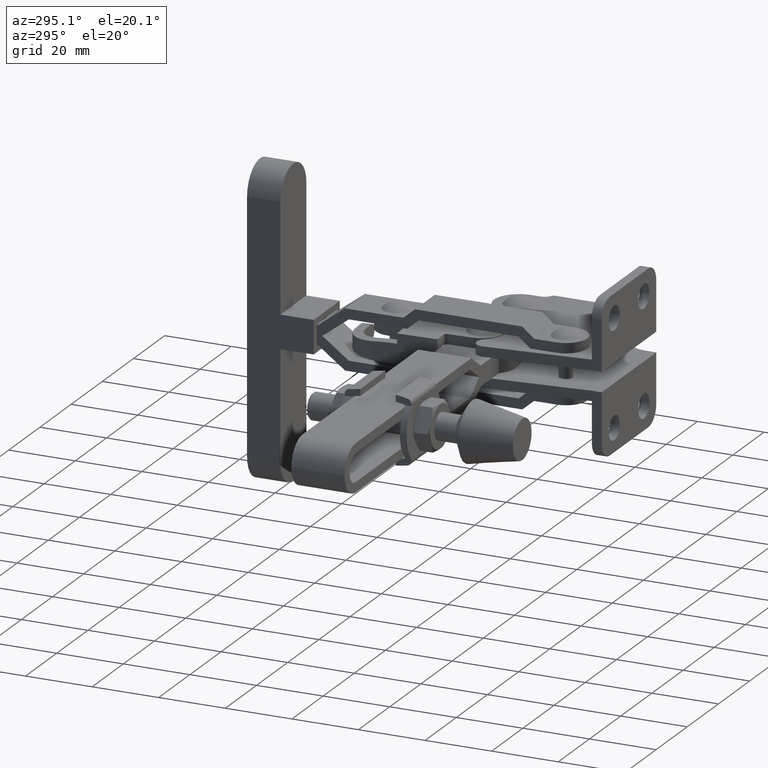
[diagram: clean part render]
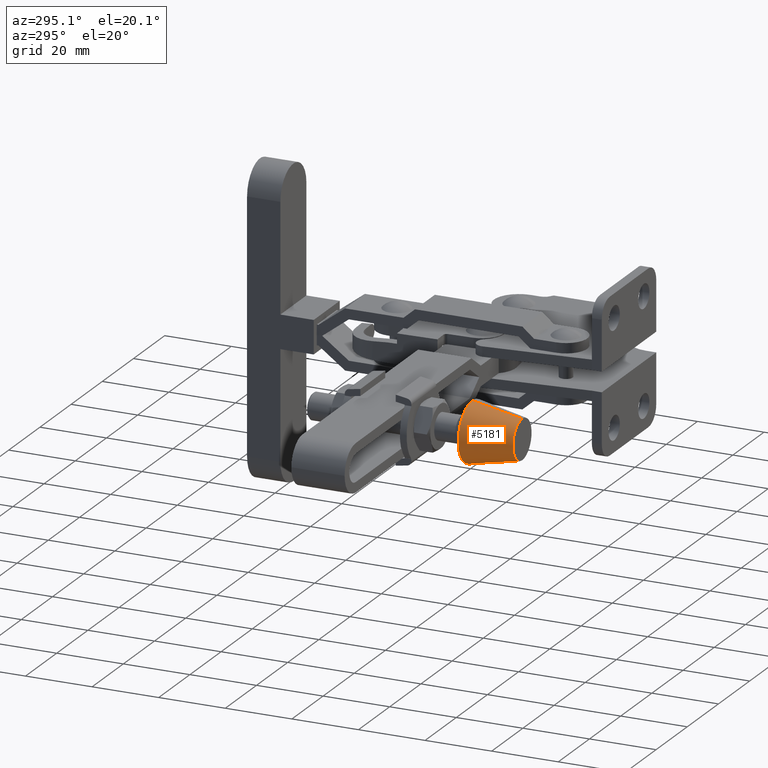
[diagram: same view with one face highlighted and labeled with its STEP entity id]
A machine part, auxiliary view. The second image highlights one B-rep face of the part: STEP entity #5181.
In plain terms, the highlighted conical surface has half-angle 11.31 deg.
Its self-contained STEP definition (entity closure, byte-faithful):
#578 = DIRECTION ( 'NONE',  ( 0.0000000000000000000, 0.0000000000000000000, 1.000000000000000000 ) ) ;
#628 = CARTESIAN_POINT ( 'NONE',  ( -94.37569315383768800, 0.2999999999995207600, -5.999999999999967100 ) ) ;
#700 = LINE ( 'NONE', #6957, #4979 ) ;
#846 = VECTOR ( 'NONE', #4433, 1000.000000000000000 ) ;
#1052 = ORIENTED_EDGE ( 'NONE', *, *, #2400, .F. ) ;
#1784 = DIRECTION ( 'NONE',  ( 0.0000000000000000000, 1.000000000000000000, 0.0000000000000000000 ) ) ;
#2168 = AXIS2_PLACEMENT_3D ( 'NONE', #10072, #4817, #9836 ) ;
#2388 = CARTESIAN_POINT ( 'NONE',  ( -94.37569315383768800, 15.29999999999952100, 9.000000000000032000 ) ) ;
#2400 = EDGE_CURVE ( 'NONE', #10718, #10616, #10049, .T. ) ;
#2422 = DIRECTION ( 'NONE',  ( -0.0000000000000000000, -1.000000000000000000, -0.0000000000000000000 ) ) ;
#2563 = EDGE_CURVE ( 'NONE', #5316, #3992, #700, .T. ) ;
#2602 = ORIENTED_EDGE ( 'NONE', *, *, #2563, .T. ) ;
#3874 = CARTESIAN_POINT ( 'NONE',  ( -94.37569315383768800, 15.29999999999952100, -8.999999999999966200 ) ) ;
#3992 = VERTEX_POINT ( 'NONE', #2388 ) ;
#4004 = AXIS2_PLACEMENT_3D ( 'NONE', #5588, #1784, #578 ) ;
#4361 = AXIS2_PLACEMENT_3D ( 'NONE', #7563, #2422, #8402 ) ;
#4433 = DIRECTION ( 'NONE',  ( 2.401729971581267900E-017, 0.9805806756909202200, -0.1961161351381839900 ) ) ;
#4817 = DIRECTION ( 'NONE',  ( -0.0000000000000000000, -1.000000000000000000, -0.0000000000000000000 ) ) ;
#4847 = EDGE_CURVE ( 'NONE', #5316, #10718, #8886, .T. ) ;
#4928 = EDGE_LOOP ( 'NONE', ( #1052, #8685, #2602, #6081 ) ) ;
#4979 = VECTOR ( 'NONE', #8654, 1000.000000000000000 ) ;
#5181 = ADVANCED_FACE ( 'NONE', ( #9279 ), #8175, .T. ) ;
#5316 = VERTEX_POINT ( 'NONE', #5939 ) ;
#5588 = CARTESIAN_POINT ( 'NONE',  ( -94.37569315383768800, 0.2999999999995207600, 3.295974604355933500E-014 ) ) ;
#5939 = CARTESIAN_POINT ( 'NONE',  ( -94.37569315383768800, 0.2999999999995207600, 6.000000000000032900 ) ) ;
#6081 = ORIENTED_EDGE ( 'NONE', *, *, #10724, .T. ) ;
#6957 = CARTESIAN_POINT ( 'NONE',  ( -94.37569315383768800, 0.2999999999995207600, 6.000000000000032900 ) ) ;
#7563 = CARTESIAN_POINT ( 'NONE',  ( -94.37569315383768800, 15.29999999999952100, 3.295974604355933500E-014 ) ) ;
#7935 = CARTESIAN_POINT ( 'NONE',  ( -94.37569315383768800, 0.2999999999995207600, -5.999999999999967100 ) ) ;
#8175 = CONICAL_SURFACE ( 'NONE', #4004, 6.000000000000000000, 0.1973955598498806600 ) ;
#8402 = DIRECTION ( 'NONE',  ( 0.0000000000000000000, 0.0000000000000000000, -1.000000000000000000 ) ) ;
#8613 = CIRCLE ( 'NONE', #4361, 9.000000000000000000 ) ;
#8654 = DIRECTION ( 'NONE',  ( 0.0000000000000000000, 0.9805806756909202200, 0.1961161351381839900 ) ) ;
#8685 = ORIENTED_EDGE ( 'NONE', *, *, #4847, .F. ) ;
#8886 = CIRCLE ( 'NONE', #2168, 6.000000000000000000 ) ;
#9279 = FACE_OUTER_BOUND ( 'NONE', #4928, .T. ) ;
#9836 = DIRECTION ( 'NONE',  ( 0.0000000000000000000, 0.0000000000000000000, -1.000000000000000000 ) ) ;
#10049 = LINE ( 'NONE', #7935, #846 ) ;
#10072 = CARTESIAN_POINT ( 'NONE',  ( -94.37569315383768800, 0.2999999999995207600, 3.295974604355933500E-014 ) ) ;
#10616 = VERTEX_POINT ( 'NONE', #3874 ) ;
#10718 = VERTEX_POINT ( 'NONE', #628 ) ;
#10724 = EDGE_CURVE ( 'NONE', #3992, #10616, #8613, .T. ) ;